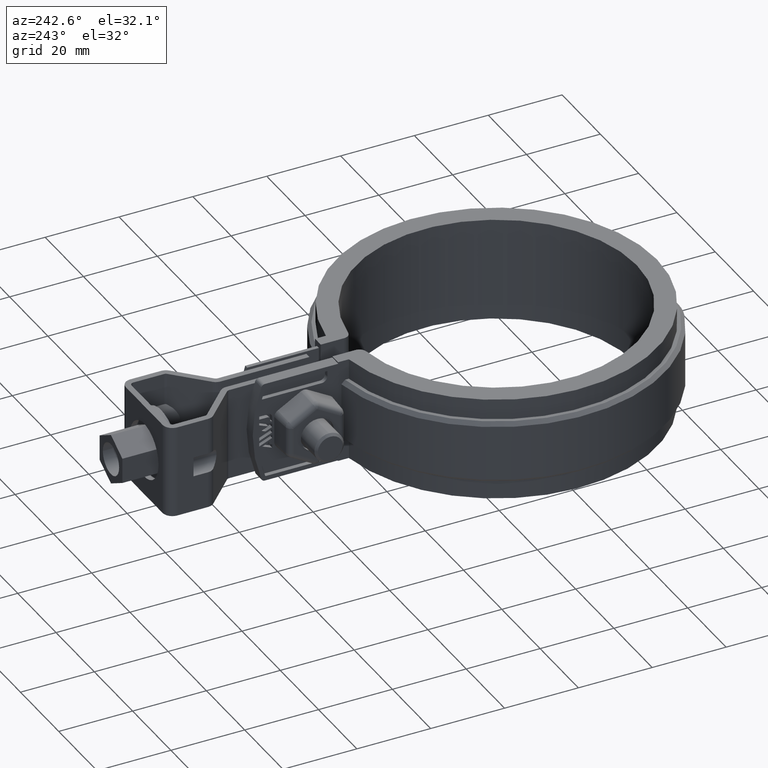
[diagram: clean part render]
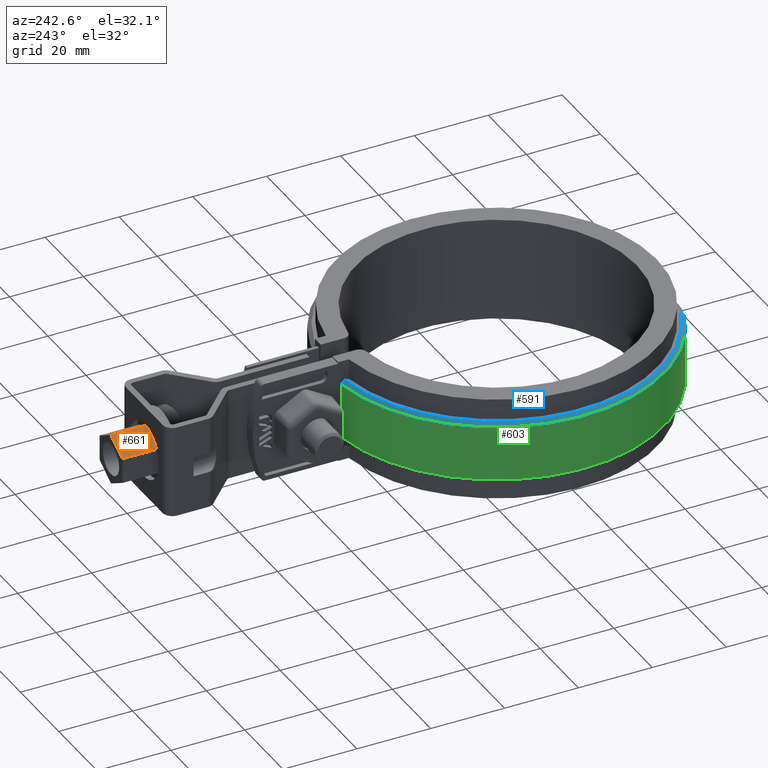
[diagram: same view with three faces highlighted in distinct colors, each labeled with its STEP entity id]
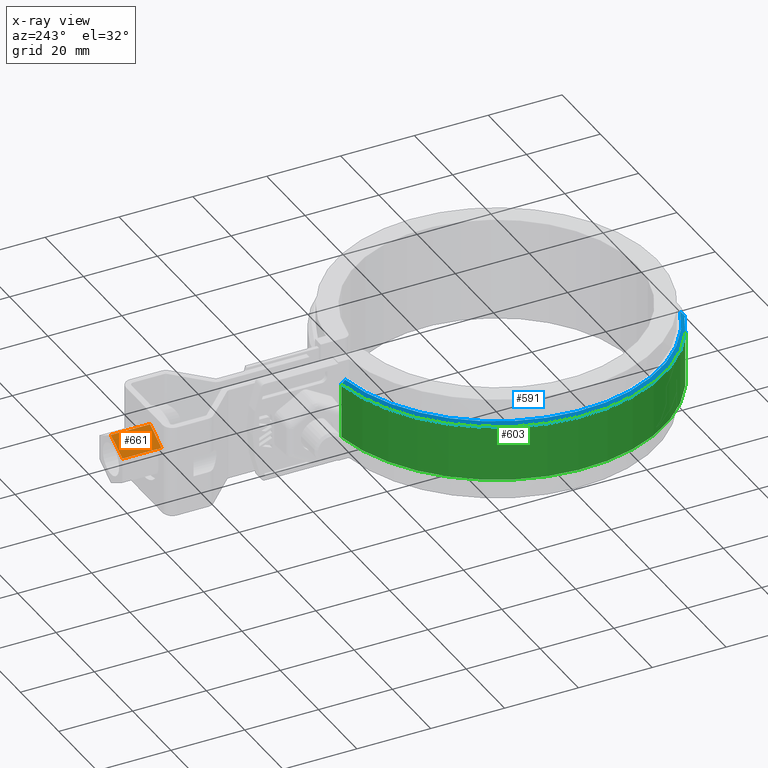
[diagram: x-ray of the same camera — body ghosted, the three highlighted faces saturated]
A machine part, auxiliary view with three faces highlighted in distinct colors.
The next image is the same camera in x-ray (body ghosted, the three faces saturated) — at least one of them is partly hidden behind the body in this view.
Their STEP definitions:

[orange] entity #661 — the highlighted planar face has unit normal (0.5, 0, -0.866).
#661 = ADVANCED_FACE( '', ( #1246 ), #1247, .F. );
#1246 = FACE_OUTER_BOUND( '', #2554, .T. );
#1247 = PLANE( '', #2555 );
#2554 = EDGE_LOOP( '', ( #5929, #5930, #5931, #5932 ) );
#2555 = AXIS2_PLACEMENT_3D( '', #5933, #5934, #5935 );
#5929 = ORIENTED_EDGE( '', *, *, #7789, .T. );
#5930 = ORIENTED_EDGE( '', *, *, #7802, .F. );
#5931 = ORIENTED_EDGE( '', *, *, #7803, .F. );
#5932 = ORIENTED_EDGE( '', *, *, #7800, .T. );
#5933 = CARTESIAN_POINT( '', ( -5.94999999999685, 104.395103745739, 3.43523410168232 ) );
#5934 = DIRECTION( '', ( 0.500000000000026, 2.32823549985102E-014, -0.866025403784423 ) );
#5935 = DIRECTION( '', ( -0.866025403784423, 1.66282193860257E-014, -0.500000000000026 ) );
#7789 = EDGE_CURVE( '', #9180, #9178, #9181, .T. );
#7800 = EDGE_CURVE( '', #9199, #9180, #9200, .T. );
#7802 = EDGE_CURVE( '', #9202, #9178, #9203, .T. );
#7803 = EDGE_CURVE( '', #9199, #9202, #9204, .T. );
#9178 = VERTEX_POINT( '', #13163 );
#9180 = VERTEX_POINT( '', #13166 );
#9181 = LINE( '', #13167, #13168 );
#9199 = VERTEX_POINT( '', #13193 );
#9200 = LINE( '', #13194, #13195 );
#9202 = VERTEX_POINT( '', #13198 );
#9203 = LINE( '', #13199, #13200 );
#9204 = LINE( '', #13201, #13202 );
#13163 = CARTESIAN_POINT( '', ( 3.01900223297217E-012, 93.7951037457393, 6.87046820336047 ) );
#13166 = CARTESIAN_POINT( '', ( -5.94999999999687, 93.7951037457394, 3.43523410168201 ) );
#13167 = CARTESIAN_POINT( '', ( -5.94999999999688, 93.7951037457394, 3.43523410168202 ) );
#13168 = VECTOR( '', #14965, 1000.00000000000 );
#13193 = CARTESIAN_POINT( '', ( -5.94999999999684, 104.395103745739, 3.43523410168231 ) );
#13194 = CARTESIAN_POINT( '', ( -5.94999999999684, 104.395103745739, 3.43523410168231 ) );
#13195 = VECTOR( '', #14982, 1000.00000000000 );
#13198 = CARTESIAN_POINT( '', ( 3.04825063180485E-012, 104.395103745739, 6.87046820336078 ) );
#13199 = CARTESIAN_POINT( '', ( 3.04825063180485E-012, 104.395103745739, 6.87046820336078 ) );
#13200 = VECTOR( '', #14984, 1000.00000000000 );
#13201 = CARTESIAN_POINT( '', ( -5.94999999999685, 104.395103745739, 3.43523410168232 ) );
#13202 = VECTOR( '', #14985, 1000.00000000000 );
#14965 = DIRECTION( '', ( 0.866025403784423, -1.66282193860257E-014, 0.500000000000026 ) );
#14982 = DIRECTION( '', ( -2.75928290874320E-015, -1.00000000000000, -2.84772205816504E-014 ) );
#14984 = DIRECTION( '', ( -2.75928290874320E-015, -1.00000000000000, -2.84772205816504E-014 ) );
#14985 = DIRECTION( '', ( 0.866025403784423, -1.66282193860257E-014, 0.500000000000026 ) );

[blue] entity #591 — the highlighted conical surface has half-angle 45 deg.
#591 = ADVANCED_FACE( '', ( #1093 ), #1094, .T. );
#1093 = FACE_OUTER_BOUND( '', #2401, .T. );
#1094 = CONICAL_SURFACE( '', #2402, 44.5000000000000, 0.785398163397445 );
#2401 = EDGE_LOOP( '', ( #5346, #5347, #5348, #5349 ) );
#2402 = AXIS2_PLACEMENT_3D( '', #5350, #5351, #5352 );
#5346 = ORIENTED_EDGE( '', *, *, #7634, .F. );
#5347 = ORIENTED_EDGE( '', *, *, #7644, .F. );
#5348 = ORIENTED_EDGE( '', *, *, #7617, .F. );
#5349 = ORIENTED_EDGE( '', *, *, #7621, .F. );
#5350 = CARTESIAN_POINT( '', ( -1.73472347597681E-015, 6.93889390390723E-015, 8.50000000000000 ) );
#5351 = DIRECTION( '', ( 0.000000000000000, 0.000000000000000, -1.00000000000000 ) );
#5352 = DIRECTION( '', ( -1.00000000000000, 0.000000000000000, 0.000000000000000 ) );
#7617 = EDGE_CURVE( '', #8900, #8895, #8901, .T. );
#7621 = EDGE_CURVE( '', #8905, #8900, #8907, .T. );
#7634 = EDGE_CURVE( '', #8925, #8905, #8927, .T. );
#7644 = EDGE_CURVE( '', #8895, #8925, #8939, .F. );
#8895 = VERTEX_POINT( '', #12720 );
#8900 = VERTEX_POINT( '', #12726 );
#8901 = LINE( '', #12727, #12728 );
#8905 = VERTEX_POINT( '', #12732 );
#8907 = CIRCLE( '', #12735, 44.5000000000000 );
#8925 = VERTEX_POINT( '', #12761 );
#8927 = B_SPLINE_CURVE_WITH_KNOTS( '', 3, ( #12764, #12765, #12766, #12767 ), .UNSPECIFIED., .F., .F., ( 4, 4 ), ( 0.000000000000000, 0.00142059912147811 ), .UNSPECIFIED. );
#8939 = CIRCLE( '', #12785, 45.5000000000000 );
#12720 = CARTESIAN_POINT( '', ( -16.2051315524462, -42.5163934426230, 7.50000000000000 ) );
#12726 = CARTESIAN_POINT( '', ( -15.8489748150298, -41.5819672131147, 8.50000000000000 ) );
#12727 = CARTESIAN_POINT( '', ( -15.8489748150298, -41.5819672131147, 8.50000000000000 ) );
#12728 = VECTOR( '', #14683, 1000.00000000000 );
#12732 = CARTESIAN_POINT( '', ( -6.00000000000000, 44.0936503365281, 8.50000000000000 ) );
#12735 = AXIS2_PLACEMENT_3D( '', #14691, #14692, #14693 );
#12761 = CARTESIAN_POINT( '', ( -6.00000000000000, 45.1026606753970, 7.50000000000000 ) );
#12764 = CARTESIAN_POINT( '', ( -6.00000000000000, 45.1026606753970, 7.50000000000000 ) );
#12765 = CARTESIAN_POINT( '', ( -6.00000000000000, 44.7663570464327, 7.83336677936435 ) );
#12766 = CARTESIAN_POINT( '', ( -6.00000000000000, 44.4300210150860, 8.16670087452149 ) );
#12767 = CARTESIAN_POINT( '', ( -6.00000000000000, 44.0936503365281, 8.50000000000000 ) );
#12785 = AXIS2_PLACEMENT_3D( '', #14730, #14731, #14732 );
#14683 = DIRECTION( '', ( -0.251840844192412, -0.660739123403824, -0.707106781186548 ) );
#14691 = CARTESIAN_POINT( '', ( -1.73472347597681E-015, 6.93889390390723E-015, 8.50000000000000 ) );
#14692 = DIRECTION( '', ( 0.000000000000000, 0.000000000000000, 1.00000000000000 ) );
#14693 = DIRECTION( '', ( 1.00000000000000, 0.000000000000000, 0.000000000000000 ) );
#14730 = CARTESIAN_POINT( '', ( -1.73472347597681E-015, 6.93889390390723E-015, 7.50000000000000 ) );
#14731 = DIRECTION( '', ( 0.000000000000000, 0.000000000000000, 1.00000000000000 ) );
#14732 = DIRECTION( '', ( 1.00000000000000, 0.000000000000000, 0.000000000000000 ) );

[green] entity #603 — the highlighted cylindrical surface (partial cylindrical patch) has radius 45.5 mm, axis along (0, 0, 1).
#603 = ADVANCED_FACE( '', ( #1117 ), #1118, .T. );
#1117 = FACE_OUTER_BOUND( '', #2425, .T. );
#1118 = CYLINDRICAL_SURFACE( '', #2426, 45.5000000000000 );
#2425 = EDGE_LOOP( '', ( #5437, #5438, #5439, #5440 ) );
#2426 = AXIS2_PLACEMENT_3D( '', #5441, #5442, #5443 );
#5437 = ORIENTED_EDGE( '', *, *, #7633, .T. );
#5438 = ORIENTED_EDGE( '', *, *, #7638, .T. );
#5439 = ORIENTED_EDGE( '', *, *, #7614, .F. );
#5440 = ORIENTED_EDGE( '', *, *, #7644, .T. );
#5441 = CARTESIAN_POINT( '', ( -1.73472347597681E-015, 6.93889390390723E-015, 8.50000000000000 ) );
#5442 = DIRECTION( '', ( 0.000000000000000, 0.000000000000000, 1.00000000000000 ) );
#5443 = DIRECTION( '', ( 0.109890109890110, -0.993943742748220, 0.000000000000000 ) );
#7614 = EDGE_CURVE( '', #8895, #8896, #8897, .T. );
#7633 = EDGE_CURVE( '', #8925, #8923, #8926, .T. );
#7638 = EDGE_CURVE( '', #8923, #8896, #8932, .T. );
#7644 = EDGE_CURVE( '', #8895, #8925, #8939, .F. );
#8895 = VERTEX_POINT( '', #12720 );
#8896 = VERTEX_POINT( '', #12721 );
#8897 = LINE( '', #12722, #12723 );
#8923 = VERTEX_POINT( '', #12756 );
#8925 = VERTEX_POINT( '', #12761 );
#8926 = LINE( '', #12762, #12763 );
#8932 = CIRCLE( '', #12774, 45.5000000000000 );
#8939 = CIRCLE( '', #12785, 45.5000000000000 );
#12720 = CARTESIAN_POINT( '', ( -16.2051315524462, -42.5163934426230, 7.50000000000000 ) );
#12721 = CARTESIAN_POINT( '', ( -16.2051315524462, -42.5163934426230, -7.50000000000000 ) );
#12722 = CARTESIAN_POINT( '', ( -16.2051315524462, -42.5163934426230, 8.50000000000000 ) );
#12723 = VECTOR( '', #14676, 1000.00000000000 );
#12756 = CARTESIAN_POINT( '', ( -6.00000000000000, 45.1026606753970, -7.50000000000000 ) );
#12761 = CARTESIAN_POINT( '', ( -6.00000000000000, 45.1026606753970, 7.50000000000000 ) );
#12762 = CARTESIAN_POINT( '', ( -6.00000000000000, 45.1026606753970, 8.50000000000000 ) );
#12763 = VECTOR( '', #14714, 1000.00000000000 );
#12774 = AXIS2_PLACEMENT_3D( '', #14720, #14721, #14722 );
#12785 = AXIS2_PLACEMENT_3D( '', #14730, #14731, #14732 );
#14676 = DIRECTION( '', ( 0.000000000000000, 0.000000000000000, -1.00000000000000 ) );
#14714 = DIRECTION( '', ( 0.000000000000000, 0.000000000000000, -1.00000000000000 ) );
#14720 = CARTESIAN_POINT( '', ( -1.73472347597681E-015, 6.93889390390723E-015, -7.50000000000000 ) );
#14721 = DIRECTION( '', ( 0.000000000000000, 0.000000000000000, 1.00000000000000 ) );
#14722 = DIRECTION( '', ( 1.00000000000000, 0.000000000000000, 0.000000000000000 ) );
#14730 = CARTESIAN_POINT( '', ( -1.73472347597681E-015, 6.93889390390723E-015, 7.50000000000000 ) );
#14731 = DIRECTION( '', ( 0.000000000000000, 0.000000000000000, 1.00000000000000 ) );
#14732 = DIRECTION( '', ( 1.00000000000000, 0.000000000000000, 0.000000000000000 ) );